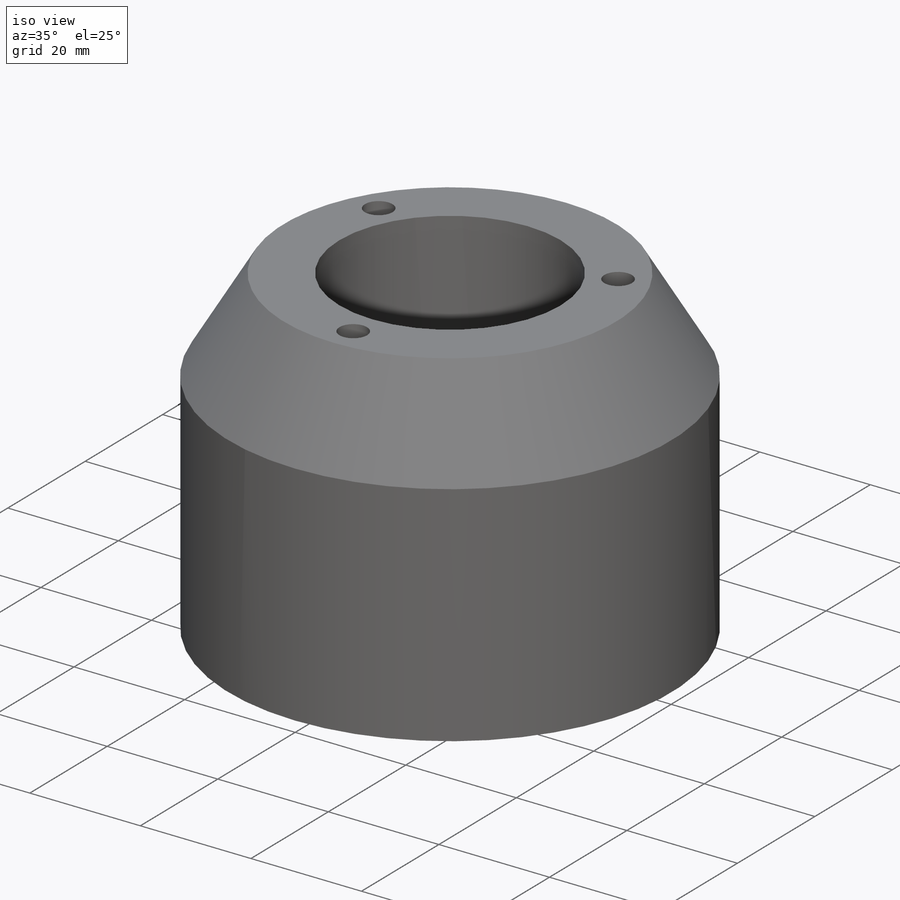
[diagram: iso view]
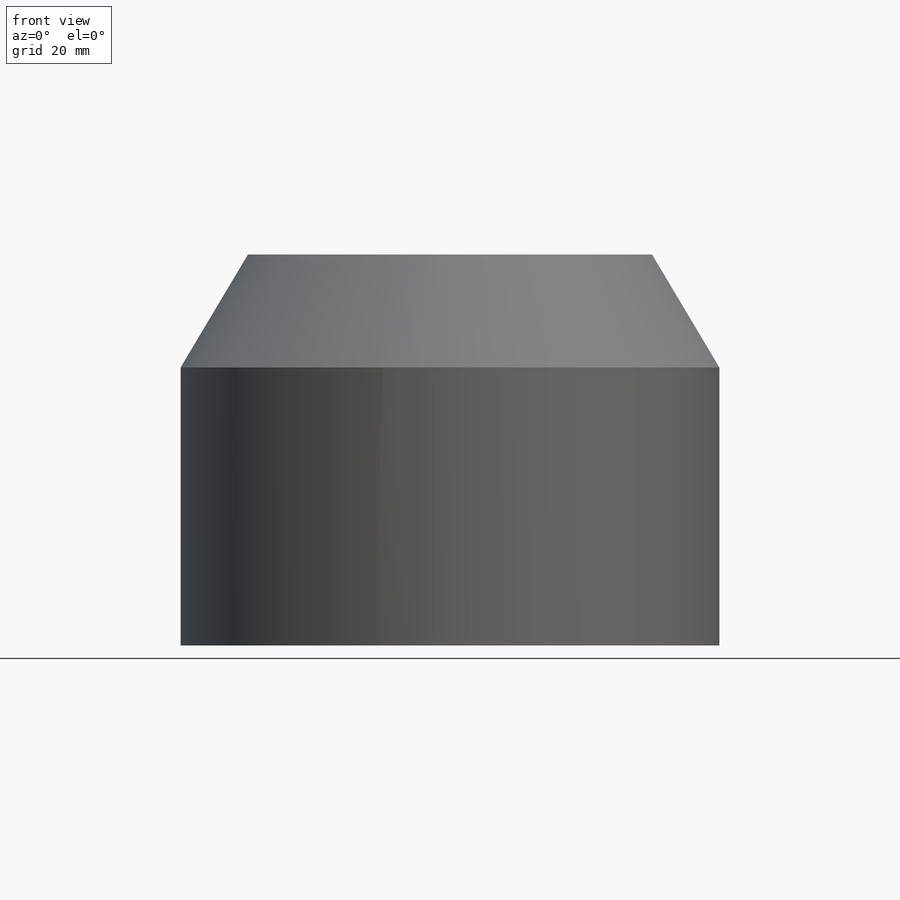
[diagram: front view]
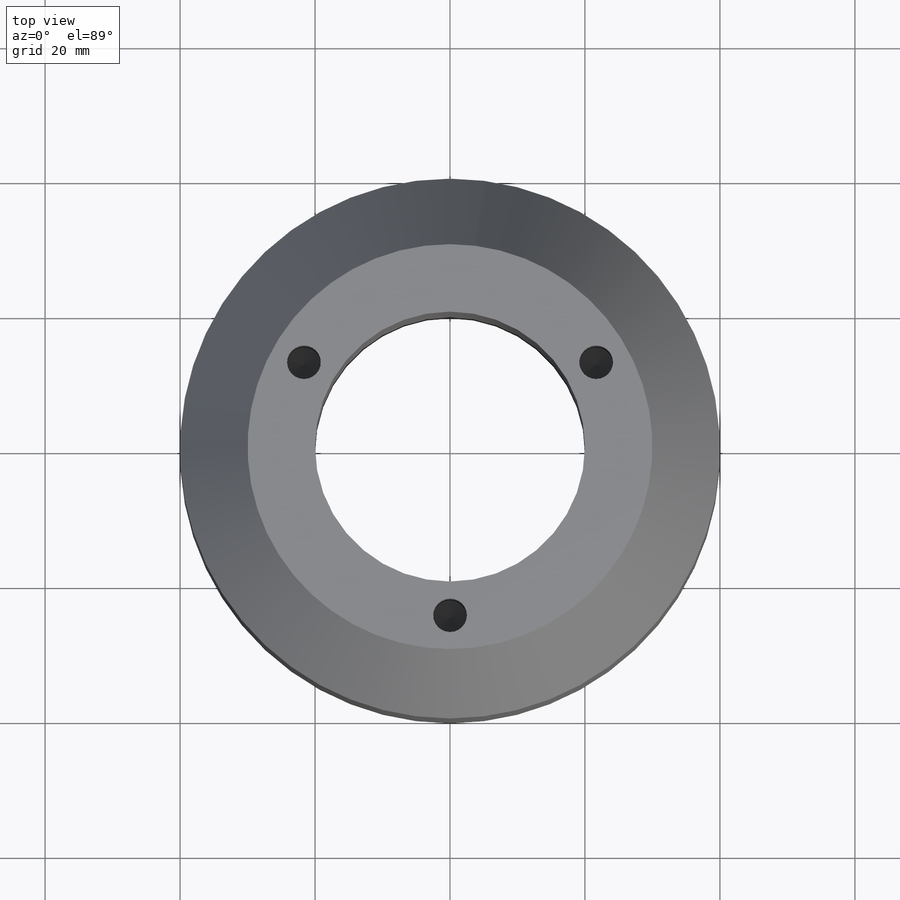
[diagram: top view]
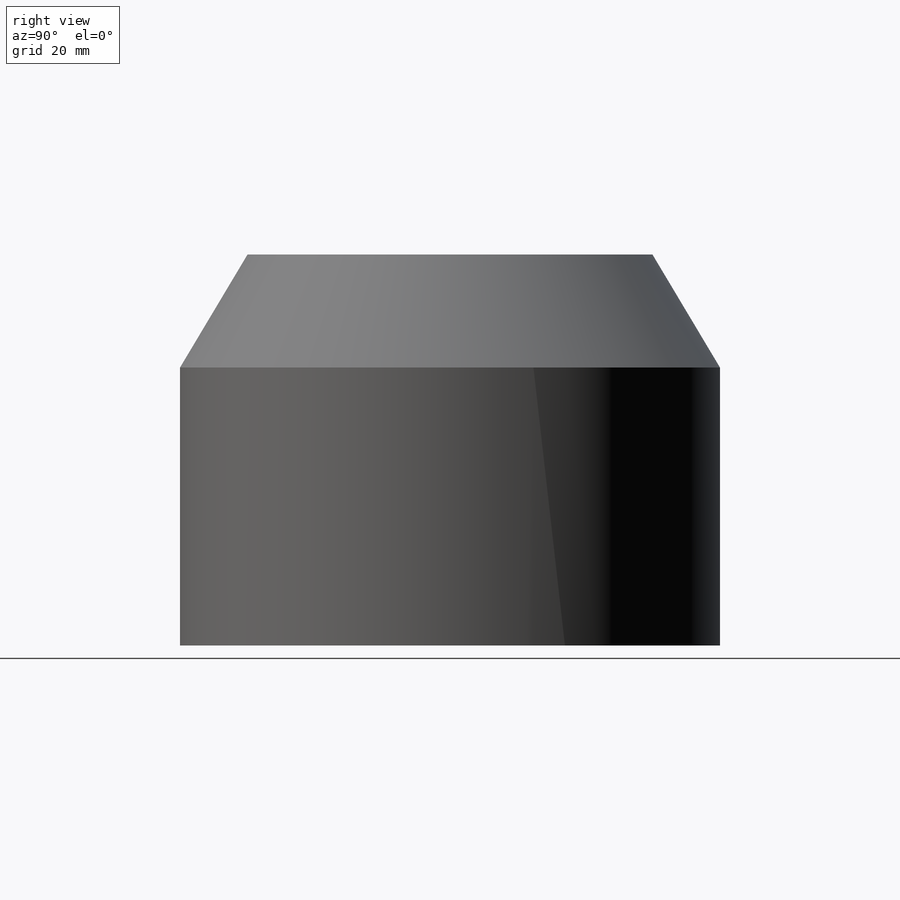
[diagram: right view]
SOLIDWORKS PART (.sldprt)
format: sldprt  version: not decoded by parser v0  size: 297,984 bytes
history: native  units: mm
features: sketch x8, thread x7, plane x3, hole x2, material x1, revolve x1, cut_extrude x1 (+10 scaffold rows collapsed)
feature tree (33):
  scaffold x10  (default folders/planes/origin — collapsed)
  material  "Matériau <non spécifié>"
  plane  "Plan de face"
  plane  "Plan de dessus"
  plane  "Plan de droite"
  sketch  "Esquisse1"  dims[D1=40.0mm D2=41.2mm D3=19.5mm D4=30.0mm D5=~57.940669mm]
  revolve  "Révolution1"  Angle=360deg
  sketch  "Esquisse2"  dims[D1=40.0mm]
  cut_extrude  "Enlèv. mat.-Extru.1"  [1 undecoded]
  sketch  "Esquisse3"  dims[D1=6.0mm D2=6.0mm D3=30.0mm D4=30.0mm]
  sketch  "Esquisse4"  dims[c1.D1=6.0mm c1.D2=25.0mm c1.D3=25.0mm c2.D3=60.0deg]
  hole  "Trou taraudé M61"  Diameter=5mm Depth=17mm
  sketch  "Esquisse3D1"  dims[D1=25.0mm]
  sketch  "Esquisse6"  dims[hole-wizard template sketch: 46 standard entries collapsed; hole parameters kept: c15.Diamètre du trou pour taraudage=5.0mm c15.Profondeur du trou pour taraudage=17.0mm c15.D3=~14.816244mm c15.Angle de pointe=118.0deg]
  thread  "Filetage de perçage8"  Diameter=15mm  [1 undecoded]
  thread  "Filetage de perçage9"  Diameter=15mm  [1 undecoded]
  thread  "Filetage de perçage10"  Diameter=15mm  [1 undecoded]
  hole  "Trou taraudé M62"  Diameter=5mm Depth=28mm
  sketch  "Esquisse3D2"  dims[D1=30.0mm]
  sketch  "Esquisse7"  dims[hole-wizard template sketch: 46 standard entries collapsed; hole parameters kept: c15.Diamètre du trou pour taraudage=5.0mm c15.Profondeur du trou pour taraudage=28.0mm c15.D3=~14.816244mm c15.Angle de pointe=118.0deg]
  thread  "Filetage de perçage4"  Diameter=25mm  [1 undecoded]
  thread  "Filetage de perçage5"  Diameter=25mm  [1 undecoded]
  thread  "Filetage de perçage6"  Diameter=25mm  [1 undecoded]
  thread  "Filetage de perçage7"  Diameter=25mm  [1 undecoded]
decode coverage: 18 of 19 modeling features carry decoded parameters
note: ~ marks probable driven/reference dimensions
note: 8 parameter values undecoded
note: suppression state not decoded; provenance and decode notes live in map.json
